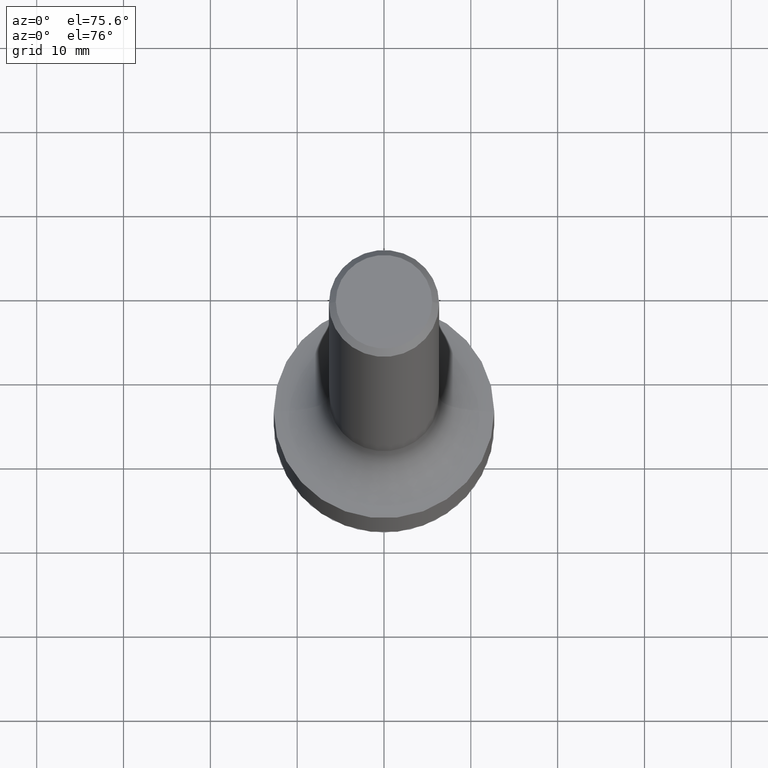
[diagram: clean part render]
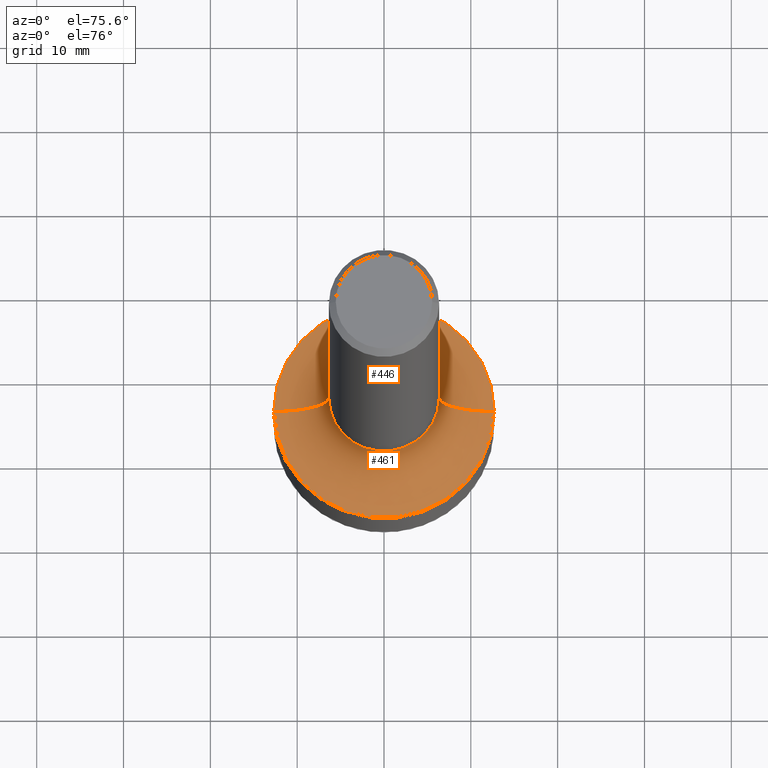
[diagram: same view with one multi-face feature highlighted, each face labeled with its STEP entity id]
A machine part, auxiliary view. The highlighted faces form ONE feature: a constant-radius fillet chain: 2 tangent blend faces with common blend radius 6.35 mm. The faces share edges in the B-rep.
Their STEP definitions:
[1] entity #461 (Torus):
#25 = ORIENTED_EDGE ( 'NONE', *, *, #208, .T. ) ;
#26 = CARTESIAN_POINT ( 'NONE',  ( 0.5000000000000000000, -1.047444401652942373E-14, -2.000000000000000444 ) ) ;
#39 = VERTEX_POINT ( 'NONE', #82 ) ;
#45 = DIRECTION ( 'NONE',  ( -6.982962677686266711E-15, -1.000000000000000000, 3.491481338843145583E-15 ) ) ;
#57 = CARTESIAN_POINT ( 'NONE',  ( -0.5000000000000000000, -2.557378664175005319E-15, -1.750000000000000444 ) ) ;
#74 = EDGE_LOOP ( 'NONE', ( #133, #25, #224, #148 ) ) ;
#82 = CARTESIAN_POINT ( 'NONE',  ( -0.2500000000000001665, -3.881992251230523010E-15, -1.750000000000000444 ) ) ;
#99 = CIRCLE ( 'NONE', #140, 0.2499999999999998057 ) ;
#105 = VERTEX_POINT ( 'NONE', #192 ) ;
#107 = VERTEX_POINT ( 'NONE', #275 ) ;
#118 = AXIS2_PLACEMENT_3D ( 'NONE', #287, #442, #290 ) ;
#130 = EDGE_CURVE ( 'NONE', #107, #303, #422, .T. ) ;
#133 = ORIENTED_EDGE ( 'NONE', *, *, #367, .F. ) ;
#140 = AXIS2_PLACEMENT_3D ( 'NONE', #57, #293, #255 ) ;
#148 = ORIENTED_EDGE ( 'NONE', *, *, #130, .F. ) ;
#151 = CIRCLE ( 'NONE', #456, 0.2500000000000001665 ) ;
#192 = CARTESIAN_POINT ( 'NONE',  ( -0.5000000000000000000, -3.430248998885791025E-15, -2.000000000000000444 ) ) ;
#207 = CIRCLE ( 'NONE', #118, 0.5000000000000000000 ) ;
#208 = EDGE_CURVE ( 'NONE', #39, #105, #99, .T. ) ;
#210 = FACE_OUTER_BOUND ( 'NONE', #74, .T. ) ;
#217 = DIRECTION ( 'NONE',  ( 1.000000000000000000, -6.982962677686268288E-15, 0.000000000000000000 ) ) ;
#224 = ORIENTED_EDGE ( 'NONE', *, *, #332, .T. ) ;
#255 = DIRECTION ( 'NONE',  ( -1.000000000000000000, 7.105427357601001859E-15, 0.000000000000000000 ) ) ;
#275 = CARTESIAN_POINT ( 'NONE',  ( 0.2500000000000001665, -7.855833012397073715E-15, -1.750000000000000444 ) ) ;
#279 = DIRECTION ( 'NONE',  ( -2.445468806185136597E-29, 3.491481338843145583E-15, 1.000000000000000000 ) ) ;
#287 = CARTESIAN_POINT ( 'NONE',  ( 4.890937612370273754E-29, -6.982962677686291954E-15, -2.000000000000000444 ) ) ;
#290 = DIRECTION ( 'NONE',  ( 1.000000000000000000, -6.982962677686266711E-15, 0.000000000000000000 ) ) ;
#293 = DIRECTION ( 'NONE',  ( 7.105427357601001859E-15, 1.000000000000000000, -3.491481338843145583E-15 ) ) ;
#303 = VERTEX_POINT ( 'NONE', #26 ) ;
#318 = CARTESIAN_POINT ( 'NONE',  ( 4.279570410823989605E-29, -6.110092342975506249E-15, -1.750000000000000444 ) ) ;
#326 = AXIS2_PLACEMENT_3D ( 'NONE', #329, #407, #488 ) ;
#329 = CARTESIAN_POINT ( 'NONE',  ( 4.279570410823989605E-29, -6.110092342975506249E-15, -1.750000000000000444 ) ) ;
#332 = EDGE_CURVE ( 'NONE', #105, #303, #207, .T. ) ;
#348 = AXIS2_PLACEMENT_3D ( 'NONE', #404, #45, #217 ) ;
#367 = EDGE_CURVE ( 'NONE', #39, #107, #151, .T. ) ;
#392 = TOROIDAL_SURFACE ( 'NONE', #326, 0.5000000000000000000, 0.2499999999999998057 ) ;
#394 = DIRECTION ( 'NONE',  ( 1.000000000000000000, -6.982962677686265922E-15, 0.000000000000000000 ) ) ;
#404 = CARTESIAN_POINT ( 'NONE',  ( 0.5000000000000000000, -9.601573681818638815E-15, -1.750000000000000444 ) ) ;
#407 = DIRECTION ( 'NONE',  ( -2.445468806185136597E-29, 3.491481338843145583E-15, 1.000000000000000000 ) ) ;
#422 = CIRCLE ( 'NONE', #348, 0.2499999999999998057 ) ;
#442 = DIRECTION ( 'NONE',  ( -2.445468806185136597E-29, 3.491481338843145583E-15, 1.000000000000000000 ) ) ;
#456 = AXIS2_PLACEMENT_3D ( 'NONE', #318, #279, #394 ) ;
#461 = ADVANCED_FACE ( 'NONE', ( #210 ), #392, .F. ) ;
#488 = DIRECTION ( 'NONE',  ( 1.000000000000000000, -6.982962677686265922E-15, 4.883557194083112340E-29 ) ) ;
[2] entity #446 (Torus):
#26 = CARTESIAN_POINT ( 'NONE',  ( 0.5000000000000000000, -1.047444401652942373E-14, -2.000000000000000444 ) ) ;
#39 = VERTEX_POINT ( 'NONE', #82 ) ;
#45 = DIRECTION ( 'NONE',  ( -6.982962677686266711E-15, -1.000000000000000000, 3.491481338843145583E-15 ) ) ;
#46 = ORIENTED_EDGE ( 'NONE', *, *, #264, .T. ) ;
#57 = CARTESIAN_POINT ( 'NONE',  ( -0.5000000000000000000, -2.557378664175005319E-15, -1.750000000000000444 ) ) ;
#82 = CARTESIAN_POINT ( 'NONE',  ( -0.2500000000000001665, -3.881992251230523010E-15, -1.750000000000000444 ) ) ;
#91 = ORIENTED_EDGE ( 'NONE', *, *, #130, .T. ) ;
#99 = CIRCLE ( 'NONE', #140, 0.2499999999999998057 ) ;
#104 = DIRECTION ( 'NONE',  ( 1.000000000000000000, -6.982962677686266711E-15, 0.000000000000000000 ) ) ;
#105 = VERTEX_POINT ( 'NONE', #192 ) ;
#107 = VERTEX_POINT ( 'NONE', #275 ) ;
#121 = ORIENTED_EDGE ( 'NONE', *, *, #208, .F. ) ;
#130 = EDGE_CURVE ( 'NONE', #107, #303, #422, .T. ) ;
#139 = CARTESIAN_POINT ( 'NONE',  ( 4.279570410823989605E-29, -6.110092342975506249E-15, -1.750000000000000444 ) ) ;
#140 = AXIS2_PLACEMENT_3D ( 'NONE', #57, #293, #255 ) ;
#174 = DIRECTION ( 'NONE',  ( -2.445468806185136597E-29, 3.491481338843145583E-15, 1.000000000000000000 ) ) ;
#184 = AXIS2_PLACEMENT_3D ( 'NONE', #401, #285, #245 ) ;
#192 = CARTESIAN_POINT ( 'NONE',  ( -0.5000000000000000000, -3.430248998885791025E-15, -2.000000000000000444 ) ) ;
#208 = EDGE_CURVE ( 'NONE', #39, #105, #99, .T. ) ;
#217 = DIRECTION ( 'NONE',  ( 1.000000000000000000, -6.982962677686268288E-15, 0.000000000000000000 ) ) ;
#236 = AXIS2_PLACEMENT_3D ( 'NONE', #338, #501, #104 ) ;
#245 = DIRECTION ( 'NONE',  ( 1.000000000000000000, -6.982962677686265922E-15, 0.000000000000000000 ) ) ;
#252 = EDGE_LOOP ( 'NONE', ( #121, #445, #91, #46 ) ) ;
#255 = DIRECTION ( 'NONE',  ( -1.000000000000000000, 7.105427357601001859E-15, 0.000000000000000000 ) ) ;
#258 = DIRECTION ( 'NONE',  ( 1.000000000000000000, -6.982962677686265922E-15, 4.883557194083112340E-29 ) ) ;
#263 = AXIS2_PLACEMENT_3D ( 'NONE', #139, #174, #258 ) ;
#264 = EDGE_CURVE ( 'NONE', #303, #105, #457, .T. ) ;
#275 = CARTESIAN_POINT ( 'NONE',  ( 0.2500000000000001665, -7.855833012397073715E-15, -1.750000000000000444 ) ) ;
#285 = DIRECTION ( 'NONE',  ( -2.445468806185136597E-29, 3.491481338843145583E-15, 1.000000000000000000 ) ) ;
#288 = CIRCLE ( 'NONE', #184, 0.2500000000000001665 ) ;
#293 = DIRECTION ( 'NONE',  ( 7.105427357601001859E-15, 1.000000000000000000, -3.491481338843145583E-15 ) ) ;
#303 = VERTEX_POINT ( 'NONE', #26 ) ;
#338 = CARTESIAN_POINT ( 'NONE',  ( 4.890937612370273754E-29, -6.982962677686291954E-15, -2.000000000000000444 ) ) ;
#348 = AXIS2_PLACEMENT_3D ( 'NONE', #404, #45, #217 ) ;
#384 = EDGE_CURVE ( 'NONE', #107, #39, #288, .T. ) ;
#401 = CARTESIAN_POINT ( 'NONE',  ( 4.279570410823989605E-29, -6.110092342975506249E-15, -1.750000000000000444 ) ) ;
#404 = CARTESIAN_POINT ( 'NONE',  ( 0.5000000000000000000, -9.601573681818638815E-15, -1.750000000000000444 ) ) ;
#422 = CIRCLE ( 'NONE', #348, 0.2499999999999998057 ) ;
#445 = ORIENTED_EDGE ( 'NONE', *, *, #384, .F. ) ;
#446 = ADVANCED_FACE ( 'NONE', ( #454 ), #466, .F. ) ;
#454 = FACE_OUTER_BOUND ( 'NONE', #252, .T. ) ;
#457 = CIRCLE ( 'NONE', #236, 0.5000000000000000000 ) ;
#466 = TOROIDAL_SURFACE ( 'NONE', #263, 0.5000000000000000000, 0.2499999999999998057 ) ;
#501 = DIRECTION ( 'NONE',  ( -2.445468806185136597E-29, 3.491481338843145583E-15, 1.000000000000000000 ) ) ;